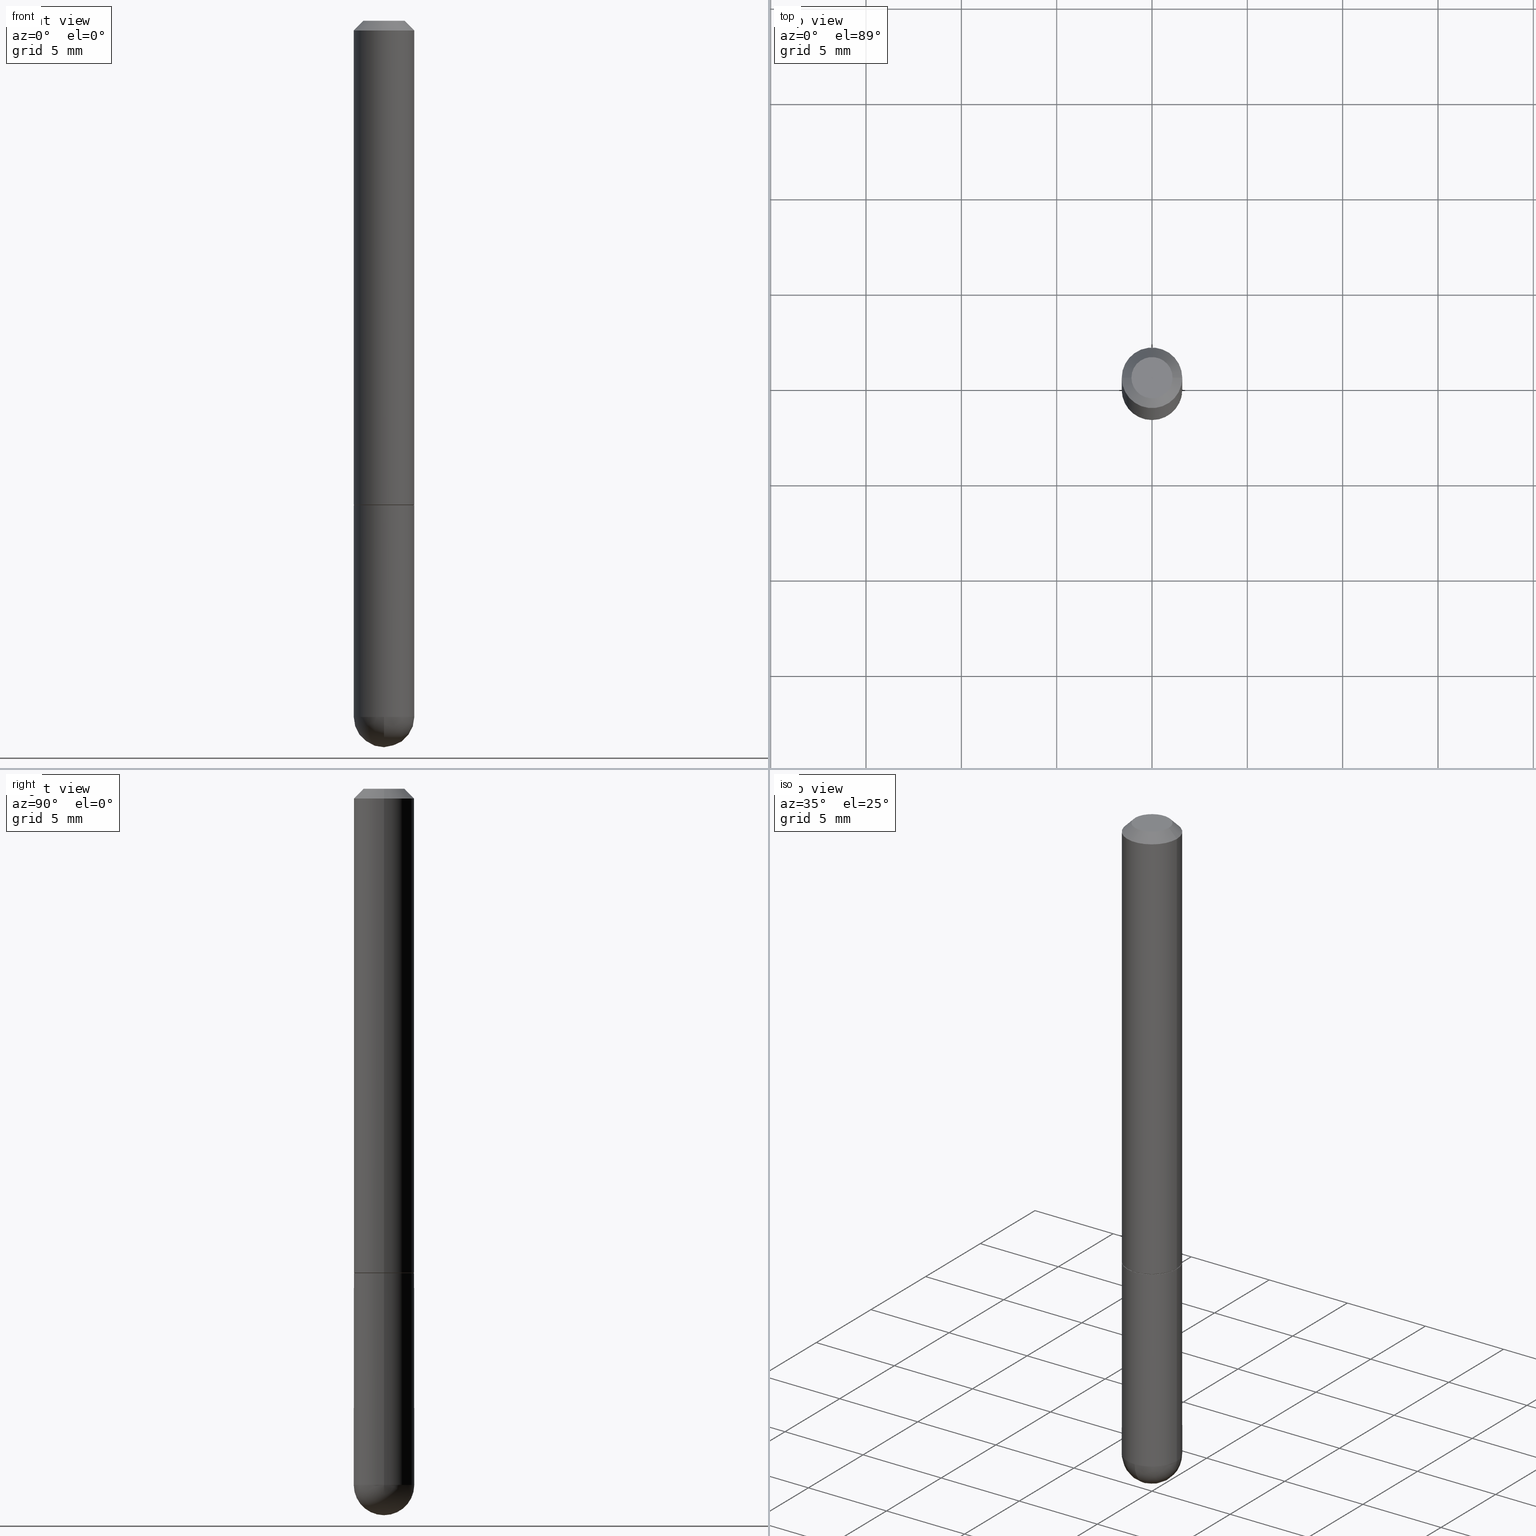
[diagram: canonical four-view strip — front | top / right | iso, engineering-drawing reading convention]
A machine part, canonical four-view strip (front | top / right | iso — engineering-drawing reading convention). The complete STEP part file that produces these views, byte-faithful:
ISO-10303-21;
HEADER;
FILE_DESCRIPTION (( 'STEP AP203' ),
    '1' );
FILE_NAME ('31137.STEP',
    '2024-02-21T16:47:25',
    ( '' ),
    ( '' ),
    'SwSTEP 2.0',
    'SolidWorks 2023',
    '' );
FILE_SCHEMA (( 'CONFIG_CONTROL_DESIGN' ));
ENDSEC;

DATA;
#1 = CALENDAR_DATE ( 2024, 21, 2 ) ;
#2 = CYLINDRICAL_SURFACE ( 'NONE', #74, 0.06250000000000004163 ) ;
#3 = ORIENTED_EDGE ( 'NONE', *, *, #314, .F. ) ;
#4 = CIRCLE ( 'NONE', #310, 0.06249999999999995143 ) ;
#5 = VERTEX_POINT ( 'NONE', #107 ) ;
#6 = CARTESIAN_POINT ( 'NONE',  ( -4.440892098500294840E-16, -0.06250000000000532907, -1.437500000000000000 ) ) ;
#7 = DIRECTION ( 'NONE',  ( -2.445468806185136597E-29, 3.491481338843145583E-15, 1.000000000000000000 ) ) ;
#8 = DIRECTION ( 'NONE',  ( 1.000000000000000000, -6.982962677686262766E-15, 0.000000000000000000 ) ) ;
#9 = DATE_TIME_ROLE ( 'classification_date' ) ;
#10 = AXIS2_PLACEMENT_3D ( 'NONE', #408, #223, #344 ) ;
#11 = DIRECTION ( 'NONE',  ( -2.445468806185136597E-29, 3.491481338843145583E-15, 1.000000000000000000 ) ) ;
#12 = CARTESIAN_POINT ( 'NONE',  ( 2.445468806185136877E-29, -3.491481338843145977E-15, -1.000000000000000222 ) ) ;
#13 = VERTEX_POINT ( 'NONE', #174 ) ;
#14 = AXIS2_PLACEMENT_3D ( 'NONE', #50, #28, #313 ) ;
#15 = ORIENTED_EDGE ( 'NONE', *, *, #376, .F. ) ;
#16 = EDGE_CURVE ( 'NONE', #64, #225, #77, .T. ) ;
#17 = PERSON_AND_ORGANIZATION_ROLE ( 'creator' ) ;
#18 = VERTEX_POINT ( 'NONE', #6 ) ;
#19 = ORIENTED_EDGE ( 'NONE', *, *, #46, .T. ) ;
#20 = CIRCLE ( 'NONE', #358, 0.04249999999999961448 ) ;
#21 = LOCAL_TIME ( 11, 47, 25.00000000000000000, #168 ) ;
#22 = EDGE_CURVE ( 'NONE', #13, #186, #20, .T. ) ;
#23 = DIRECTION ( 'NONE',  ( 2.445468806185136597E-29, -3.491481338843145583E-15, -1.000000000000000000 ) ) ;
#24 = CARTESIAN_POINT ( 'NONE',  ( 0.06149999999999999911, -3.920933543520851632E-15, -1.000000000000000222 ) ) ;
#25 = DIRECTION ( 'NONE',  ( 1.000000000000000000, -6.982962677686266711E-15, 4.852736867747410488E-29 ) ) ;
#26 = CIRCLE ( 'NONE', #300, 0.04249999999999961448 ) ;
#27 = APPROVAL ( #96, 'UNSPECIFIED' ) ;
#28 = DIRECTION ( 'NONE',  ( -2.445468806185136597E-29, 3.491481338843145583E-15, 1.000000000000000000 ) ) ;
#29 = CARTESIAN_POINT ( 'NONE',  ( 0.06249999999999997224, -4.364351673553914722E-16, 3.047610484872458469E-30 ) ) ;
#30 = CALENDAR_DATE ( 2024, 21, 2 ) ;
#31 = EDGE_LOOP ( 'NONE', ( #54, #71, #261, #327, #113 ) ) ;
#32 = CARTESIAN_POINT ( 'NONE',  ( -0.06149999999999999911, -3.054497556350684369E-15, -1.000000000000000222 ) ) ;
#33 = AXIS2_PLACEMENT_3D ( 'NONE', #12, #11, #8 ) ;
#34 = LINE ( 'NONE', #32, #233 ) ;
#35 = EDGE_CURVE ( 'NONE', #397, #18, #181, .T. ) ;
#36 = FACE_OUTER_BOUND ( 'NONE', #353, .T. ) ;
#37 = CARTESIAN_POINT ( 'NONE',  ( -0.06250000000000013878, -1.334820532290516771E-15, -0.9990000000000002212 ) ) ;
#38 = ORIENTED_EDGE ( 'NONE', *, *, #374, .F. ) ;
#39 = FACE_OUTER_BOUND ( 'NONE', #278, .T. ) ;
#40 = EDGE_CURVE ( 'NONE', #229, #385, #179, .T. ) ;
#41 = VECTOR ( 'NONE', #180, 39.37007874015748143 ) ;
#42 = CARTESIAN_POINT ( 'NONE',  ( 2.445468806185136877E-29, -3.491481338843145977E-15, -1.000000000000000222 ) ) ;
#43 = VERTEX_POINT ( 'NONE', #118 ) ;
#44 = LINE ( 'NONE', #79, #41 ) ;
#45 = APPROVAL_PERSON_ORGANIZATION ( #218, #309, #88 ) ;
#46 = EDGE_CURVE ( 'NONE', #397, #43, #256, .T. ) ;
#47 = CONICAL_SURFACE ( 'NONE', #116, 0.06249999999999995143, 0.7853981633974480570 ) ;
#48 = CC_DESIGN_PERSON_AND_ORGANIZATION_ASSIGNMENT ( #373, #145, ( #333 ) ) ;
#49 = APPLICATION_CONTEXT ( 'configuration controlled 3d designs of mechanical parts and assemblies' ) ;
#50 = CARTESIAN_POINT ( 'NONE',  ( 2.445468806185136877E-29, -3.491481338843145977E-15, -1.000000000000000222 ) ) ;
#51 = EDGE_CURVE ( 'NONE', #225, #229, #379, .T. ) ;
#52 = ORIENTED_EDGE ( 'NONE', *, *, #245, .T. ) ;
#53 = CARTESIAN_POINT ( 'NONE',  ( -0.06250000000000000000, -3.811153671865022332E-15, -1.000000000000000222 ) ) ;
#54 = ORIENTED_EDGE ( 'NONE', *, *, #372, .T. ) ;
#55 = AXIS2_PLACEMENT_3D ( 'NONE', #311, #211, #249 ) ;
#56 = LOCAL_TIME ( 11, 47, 25.00000000000000000, #288 ) ;
#57 = CARTESIAN_POINT ( 'NONE',  ( 3.515361408891134418E-29, -5.019004424587023131E-15, -1.437500000000000222 ) ) ;
#58 = MECHANICAL_CONTEXT ( 'NONE', #49, 'mechanical' ) ;
#59 = PERSON_AND_ORGANIZATION ( #401, #106 ) ;
#60 = CARTESIAN_POINT ( 'NONE',  ( 0.04249999999999961448, -3.950909582714350189E-16, 2.731847993664287377E-16 ) ) ;
#61 = CALENDAR_DATE ( 2024, 21, 2 ) ;
#62 = DATE_AND_TIME ( #30, #150 ) ;
#63 = DIRECTION ( 'NONE',  ( -2.445468806185136597E-29, 3.491481338843145583E-15, 1.000000000000000000 ) ) ;
#64 = VERTEX_POINT ( 'NONE', #112 ) ;
#65 = EDGE_CURVE ( 'NONE', #154, #5, #149, .T. ) ;
#66 = APPROVAL_ROLE ( '' ) ;
#67 = CARTESIAN_POINT ( 'NONE',  ( 0.06250000000000004163, -4.364351673553919652E-16, 3.047610484872461972E-30 ) ) ;
#68 = DIRECTION ( 'NONE',  ( -1.000000000000000000, 6.982962677686265922E-15, -4.883557194083112340E-29 ) ) ;
#69 = CIRCLE ( 'NONE', #324, 0.06149999999999999911 ) ;
#70 = DIRECTION ( 'NONE',  ( 1.000000000000000000, -6.982962677686262766E-15, 0.000000000000000000 ) ) ;
#71 = ORIENTED_EDGE ( 'NONE', *, *, #219, .T. ) ;
#72 = PLANE ( 'NONE',  #182 ) ;
#73 = CALENDAR_DATE ( 2024, 21, 2 ) ;
#74 = AXIS2_PLACEMENT_3D ( 'NONE', #292, #354, #89 ) ;
#75 = CONICAL_SURFACE ( 'NONE', #135, 0.06149999999999999911, 0.7853981633975507526 ) ;
#76 = ADVANCED_FACE ( 'NONE', ( #132 ), #2, .T. ) ;
#77 = CIRCLE ( 'NONE', #114, 0.06149999999999999911 ) ;
#78 = CIRCLE ( 'NONE', #281, 0.06249999999999995143 ) ;
#79 = CARTESIAN_POINT ( 'NONE',  ( -0.06249999999999997224, 4.440892098500624190E-16, -3.074334431409315063E-30 ) ) ;
#80 = VERTEX_POINT ( 'NONE', #251 ) ;
#81 = ADVANCED_FACE ( 'NONE', ( #129 ), #163, .F. ) ;
#82 = LENGTH_MEASURE_WITH_UNIT ( LENGTH_MEASURE( 0.02539999999999999897 ), #169 );
#83 = AXIS2_PLACEMENT_3D ( 'NONE', #204, #332, #274 ) ;
#84 = DIRECTION ( 'NONE',  ( 1.000000000000000000, -6.982962677686269866E-15, 0.000000000000000000 ) ) ;
#85 = DIRECTION ( 'NONE',  ( 0.7071067811866199593, -2.468850131083015945E-15, 0.7071067811864750752 ) ) ;
#86 = DIRECTION ( 'NONE',  ( -2.445468806185136877E-29, 3.491481338843145188E-15, 1.000000000000000000 ) ) ;
#87 = DIRECTION ( 'NONE',  ( 1.000000000000000000, -6.982962677686266711E-15, 4.876176775795935793E-29 ) ) ;
#88 = APPROVAL_ROLE ( '' ) ;
#89 = DIRECTION ( 'NONE',  ( 1.000000000000000000, -6.982962677686266711E-15, 4.876176775795935793E-29 ) ) ;
#90 = ORIENTED_EDGE ( 'NONE', *, *, #35, .F. ) ;
#91 = LOCAL_TIME ( 11, 47, 25.00000000000000000, #389 ) ;
#92 = PERSON_AND_ORGANIZATION ( #401, #106 ) ;
#93 = ORIENTED_EDGE ( 'NONE', *, *, #35, .T. ) ;
#94 = FACE_OUTER_BOUND ( 'NONE', #286, .T. ) ;
#95 = CARTESIAN_POINT ( 'NONE',  ( -0.06250000000000004163, 4.440892098500629120E-16, -3.074334431409318216E-30 ) ) ;
#96 = APPROVAL_STATUS ( 'not_yet_approved' ) ;
#97 = CARTESIAN_POINT ( 'NONE',  ( 4.364351673554160748E-16, 0.06249999999999650974, -1.000000000000000444 ) ) ;
#98 = CARTESIAN_POINT ( 'NONE',  ( 0.000000000000000000, 0.000000000000000000, 0.000000000000000000 ) ) ;
#99 = APPROVAL_ROLE ( '' ) ;
#100 = CARTESIAN_POINT ( 'NONE',  ( 2.967759138016636432E-16, 0.04249999999999961448, -1.179555721761916759E-17 ) ) ;
#101 = CONICAL_SURFACE ( 'NONE', #400, 0.06249999999999995143, 0.7853981633974480570 ) ;
#102 = VERTEX_POINT ( 'NONE', #122 ) ;
#103 = ORIENTED_EDGE ( 'NONE', *, *, #22, .F. ) ;
#104 = DIRECTION ( 'NONE',  ( -1.000000000000000000, 7.105427357601001070E-15, -4.926315508542082329E-29 ) ) ;
#105 = PERSON_AND_ORGANIZATION ( #401, #106 ) ;
#106 = ORGANIZATION ( 'UNSPECIFIED', 'UNSPECIFIED', '' ) ;
#107 = CARTESIAN_POINT ( 'NONE',  ( 0.06250000000000000000, -3.927916506198537646E-15, -1.000000000000000222 ) ) ;
#108 = EDGE_CURVE ( 'NONE', #13, #325, #227, .T. ) ;
#109 = DIRECTION ( 'NONE',  ( -1.000000000000000000, 6.982962677686266711E-15, 0.000000000000000000 ) ) ;
#110 = EDGE_CURVE ( 'NONE', #186, #13, #26, .T. ) ;
#111 = APPROVAL_PERSON_ORGANIZATION ( #366, #27, #66 ) ;
#112 = CARTESIAN_POINT ( 'NONE',  ( -0.06149999999999999911, -3.049199102002462361E-15, -1.000000000000000222 ) ) ;
#113 = ORIENTED_EDGE ( 'NONE', *, *, #124, .T. ) ;
#114 = AXIS2_PLACEMENT_3D ( 'NONE', #298, #239, #170 ) ;
#115 = ORIENTED_EDGE ( 'NONE', *, *, #108, .T. ) ;
#116 = AXIS2_PLACEMENT_3D ( 'NONE', #146, #23, #405 ) ;
#117 = DIRECTION ( 'NONE',  ( -2.445468806185136597E-29, 3.491481338843145583E-15, 1.000000000000000000 ) ) ;
#118 = CARTESIAN_POINT ( 'NONE',  ( 4.364351673554256397E-16, 0.06249999999999480971, -1.437500000000000444 ) ) ;
#119 = EDGE_CURVE ( 'NONE', #385, #229, #175, .T. ) ;
#120 = DIRECTION ( 'NONE',  ( 1.000000000000000000, -6.982962677686270655E-15, 0.000000000000000000 ) ) ;
#121 = CARTESIAN_POINT ( 'NONE',  ( 4.890937612370289799E-31, -6.982962677686315028E-17, -0.02000000000000006981 ) ) ;
#122 = CARTESIAN_POINT ( 'NONE',  ( -0.06249999999999995143, -3.811153671865022332E-15, -1.437500000000000222 ) ) ;
#123 = ORIENTED_EDGE ( 'NONE', *, *, #110, .T. ) ;
#124 = EDGE_CURVE ( 'NONE', #80, #43, #4, .T. ) ;
#125 = DIRECTION ( 'NONE',  ( -1.000000000000000000, 6.982962677686265922E-15, -4.876176775795935793E-29 ) ) ;
#126 = VECTOR ( 'NONE', #86, 39.37007874015748143 ) ;
#127 = AXIS2_PLACEMENT_3D ( 'NONE', #137, #7, #200 ) ;
#128 = FACE_OUTER_BOUND ( 'NONE', #336, .T. ) ;
#129 = FACE_OUTER_BOUND ( 'NONE', #212, .T. ) ;
#130 = DIRECTION ( 'NONE',  ( -2.445468806185136597E-29, 3.491481338843145583E-15, 1.000000000000000000 ) ) ;
#131 = SPHERICAL_SURFACE ( 'NONE', #270, 0.06250000000000018041 ) ;
#132 = FACE_OUTER_BOUND ( 'NONE', #140, .T. ) ;
#133 = PRODUCT_DEFINITION ( 'UNKNOWN', '', #302, #246 ) ;
#134 = CARTESIAN_POINT ( 'NONE',  ( -0.06249999999999995143, 3.666055405785281740E-16, -0.02000000000000006981 ) ) ;
#135 = AXIS2_PLACEMENT_3D ( 'NONE', #319, #117, #339 ) ;
#136 = ORIENTED_EDGE ( 'NONE', *, *, #110, .F. ) ;
#137 = CARTESIAN_POINT ( 'NONE',  ( 4.890937612370289799E-31, -6.982962677686315028E-17, -0.02000000000000006981 ) ) ;
#138 = DATE_AND_TIME ( #73, #21 ) ;
#139 = ORIENTED_EDGE ( 'NONE', *, *, #16, .F. ) ;
#140 = EDGE_LOOP ( 'NONE', ( #15, #412, #244, #178 ) ) ;
#141 = CC_DESIGN_PERSON_AND_ORGANIZATION_ASSIGNMENT ( #92, #351, ( #177 ) ) ;
#142 = CIRCLE ( 'NONE', #33, 0.06250000000000000000 ) ;
#143 = ORIENTED_EDGE ( 'NONE', *, *, #357, .T. ) ;
#144 = EDGE_CURVE ( 'NONE', #229, #216, #254, .T. ) ;
#145 = PERSON_AND_ORGANIZATION_ROLE ( 'classification_officer' ) ;
#146 = CARTESIAN_POINT ( 'NONE',  ( 4.890937612370289799E-31, -6.982962677686315028E-17, -0.02000000000000006981 ) ) ;
#147 = AXIS2_PLACEMENT_3D ( 'NONE', #275, #167, #297 ) ;
#148 = ADVANCED_FACE ( 'NONE', ( #391 ), #195, .F. ) ;
#149 = CIRCLE ( 'NONE', #395, 0.06250000000000000000 ) ;
#150 = LOCAL_TIME ( 11, 47, 25.00000000000000000, #224 ) ;
#151 = DIRECTION ( 'NONE',  ( -2.445468806185136597E-29, 3.491481338843145583E-15, 1.000000000000000000 ) ) ;
#152 = EDGE_LOOP ( 'NONE', ( #375, #103, #115, #349 ) ) ;
#153 = DIRECTION ( 'NONE',  ( -2.445468806185136597E-29, 3.491481338843145583E-15, 1.000000000000000000 ) ) ;
#154 = VERTEX_POINT ( 'NONE', #53 ) ;
#155 = DIRECTION ( 'NONE',  ( -2.445468806185136877E-29, 3.491481338843145188E-15, 1.000000000000000000 ) ) ;
#156 = EDGE_CURVE ( 'NONE', #18, #80, #184, .T. ) ;
#157 = DIRECTION ( 'NONE',  ( -2.445468806185136597E-29, 3.491481338843145583E-15, 1.000000000000000000 ) ) ;
#158 = ORIENTED_EDGE ( 'NONE', *, *, #357, .F. ) ;
#159 = DIRECTION ( 'NONE',  ( 1.000000000000000000, -6.982962677686266711E-15, 0.000000000000000000 ) ) ;
#160 = CARTESIAN_POINT ( 'NONE',  ( 0.000000000000000000, 0.000000000000000000, 0.000000000000000000 ) ) ;
#161 = DIRECTION ( 'NONE',  ( -0.7071067811866199593, 7.493145998870616062E-15, 0.7071067811864750752 ) ) ;
#162 = ORIENTED_EDGE ( 'NONE', *, *, #40, .T. ) ;
#163 = PLANE ( 'NONE',  #323 ) ;
#164 = ORIENTED_EDGE ( 'NONE', *, *, #124, .F. ) ;
#165 = CONICAL_SURFACE ( 'NONE', #14, 0.06149999999999999911, 0.7853981633975507526 ) ;
#166 = EDGE_LOOP ( 'NONE', ( #293, #368, #188, #252 ) ) ;
#167 = DIRECTION ( 'NONE',  ( -2.445468806185136597E-29, 3.491481338843145583E-15, 1.000000000000000000 ) ) ;
#168 = COORDINATED_UNIVERSAL_TIME_OFFSET ( 5, 0, .BEHIND. ) ;
#169 =( LENGTH_UNIT ( ) NAMED_UNIT ( * ) SI_UNIT ( $, .METRE. ) );
#170 = DIRECTION ( 'NONE',  ( 1.000000000000000000, -6.982962677686269866E-15, 0.000000000000000000 ) ) ;
#171 = CARTESIAN_POINT ( 'NONE',  ( 3.184241630977247611E-29, -5.493186792727071849E-15, -1.437500000000000000 ) ) ;
#172 = DATE_AND_TIME ( #61, #91 ) ;
#173 = DIRECTION ( 'NONE',  ( -2.445468806185136877E-29, 3.491481338843145188E-15, 1.000000000000000000 ) ) ;
#174 = CARTESIAN_POINT ( 'NONE',  ( -0.04249999999999961448, 3.316907271900963770E-16, 2.731847993664241525E-16 ) ) ;
#175 = CIRCLE ( 'NONE', #402, 0.06250000000000013878 ) ;
#176 = PRODUCT_RELATED_PRODUCT_CATEGORY ( 'detail', '', ( #177 ) ) ;
#177 = PRODUCT ( '31137', '31137', '', ( #58 ) ) ;
#178 = ORIENTED_EDGE ( 'NONE', *, *, #340, .F. ) ;
#179 = CIRCLE ( 'NONE', #83, 0.06250000000000013878 ) ;
#180 = DIRECTION ( 'NONE',  ( -2.445468806185136877E-29, 3.491481338843145188E-15, 1.000000000000000000 ) ) ;
#181 = CIRCLE ( 'NONE', #214, 0.06250000000000018041 ) ;
#182 = AXIS2_PLACEMENT_3D ( 'NONE', #42, #198, #326 ) ;
#183 = CC_DESIGN_PERSON_AND_ORGANIZATION_ASSIGNMENT ( #280, #236, ( #302 ) ) ;
#184 = CIRCLE ( 'NONE', #307, 0.06249999999999995143 ) ;
#185 = CC_DESIGN_SECURITY_CLASSIFICATION ( #333, ( #302 ) ) ;
#186 = VERTEX_POINT ( 'NONE', #60 ) ;
#187 = CARTESIAN_POINT ( 'NONE',  ( 3.515361408891134418E-29, -5.019004424587023131E-15, -1.437500000000000222 ) ) ;
#188 = ORIENTED_EDGE ( 'NONE', *, *, #40, .F. ) ;
#189 = EDGE_CURVE ( 'NONE', #186, #216, #192, .T. ) ;
#190 =( NAMED_UNIT ( * ) PLANE_ANGLE_UNIT ( ) SI_UNIT ( $, .RADIAN. ) );
#191 = PERSON_AND_ORGANIZATION_ROLE ( 'creator' ) ;
#192 = LINE ( 'NONE', #320, #277 ) ;
#193 = EDGE_LOOP ( 'NONE', ( #335, #93, #158, #196 ) ) ;
#194 = DATE_AND_TIME ( #1, #56 ) ;
#195 = PLANE ( 'NONE',  #367 ) ;
#196 = ORIENTED_EDGE ( 'NONE', *, *, #372, .F. ) ;
#197 = CARTESIAN_POINT ( 'NONE',  ( 4.890937612370289799E-31, -6.982962677686315028E-17, -0.02000000000000006981 ) ) ;
#198 = DIRECTION ( 'NONE',  ( -2.438088387897960049E-29, 3.491481338843145188E-15, 1.000000000000000000 ) ) ;
#199 = ADVANCED_FACE ( 'NONE', ( #294 ), #390, .T. ) ;
#200 = DIRECTION ( 'NONE',  ( 1.000000000000000000, -6.982962677686266711E-15, 0.000000000000000000 ) ) ;
#201 = LINE ( 'NONE', #95, #337 ) ;
#202 =( NAMED_UNIT ( * ) SI_UNIT ( $, .STERADIAN. ) SOLID_ANGLE_UNIT ( ) );
#203 = CARTESIAN_POINT ( 'NONE',  ( -6.680649051745406845E-45, 9.538196290434862081E-31, 2.731847993664263218E-16 ) ) ;
#204 = CARTESIAN_POINT ( 'NONE',  ( 2.443023337378951835E-29, -3.487989857504302970E-15, -0.9990000000000002212 ) ) ;
#205 = CC_DESIGN_DATE_AND_TIME_ASSIGNMENT ( #194, #322, ( #133 ) ) ;
#206 = SECURITY_CLASSIFICATION_LEVEL ( 'unclassified' ) ;
#207 = CARTESIAN_POINT ( 'NONE',  ( 0.06249999999999995143, -4.986107516375835278E-16, -0.02000000000000006981 ) ) ;
#208 = ADVANCED_FACE ( 'NONE', ( #94 ), #165, .T. ) ;
#209 = VECTOR ( 'NONE', #228, 39.37007874015748143 ) ;
#210 = CALENDAR_DATE ( 2024, 21, 2 ) ;
#211 = DIRECTION ( 'NONE',  ( 1.000000000000000000, -6.982962677686265922E-15, 4.883557194083112340E-29 ) ) ;
#212 = EDGE_LOOP ( 'NONE', ( #383, #123 ) ) ;
#213 = ADVANCED_FACE ( 'NONE', ( #411 ), #101, .T. ) ;
#214 = AXIS2_PLACEMENT_3D ( 'NONE', #398, #104, #365 ) ;
#215 = FACE_OUTER_BOUND ( 'NONE', #166, .T. ) ;
#216 = VERTEX_POINT ( 'NONE', #207 ) ;
#217 = CARTESIAN_POINT ( 'NONE',  ( 0.06149999999999999911, -3.920933543520851632E-15, -1.000000000000000222 ) ) ;
#218 = PERSON_AND_ORGANIZATION ( #401, #106 ) ;
#219 = EDGE_CURVE ( 'NONE', #102, #154, #44, .T. ) ;
#220 = DIRECTION ( 'NONE',  ( 2.438088387897960049E-29, -3.491481338843145188E-15, -1.000000000000000000 ) ) ;
#221 =( CONVERSION_BASED_UNIT ( 'INCH', #82 ) LENGTH_UNIT ( ) NAMED_UNIT ( #362 ) );
#222 = DIRECTION ( 'NONE',  ( 2.445468806185136597E-29, -3.491481338843145583E-15, -1.000000000000000000 ) ) ;
#223 = DIRECTION ( 'NONE',  ( 0.000000000000000000, 0.000000000000000000, 1.000000000000000000 ) ) ;
#224 = COORDINATED_UNIVERSAL_TIME_OFFSET ( 5, 0, .BEHIND. ) ;
#225 = VERTEX_POINT ( 'NONE', #24 ) ;
#226 = CC_DESIGN_APPROVAL ( #27, ( #302 ) ) ;
#227 = LINE ( 'NONE', #289, #209 ) ;
#228 = DIRECTION ( 'NONE',  ( -0.7071067811865473507, 2.468850131082255088E-15, -0.7071067811865476838 ) ) ;
#229 = VERTEX_POINT ( 'NONE', #259 ) ;
#230 = DIRECTION ( 'NONE',  ( 0.7071067811865473507, -7.319954787623256045E-15, -0.7071067811865476838 ) ) ;
#231 = DIRECTION ( 'NONE',  ( -2.445468806185136597E-29, 3.491481338843145583E-15, 1.000000000000000000 ) ) ;
#232 = ADVANCED_FACE ( 'NONE', ( #215 ), #75, .T. ) ;
#233 = VECTOR ( 'NONE', #161, 39.37007874015748143 ) ;
#234 = ORIENTED_EDGE ( 'NONE', *, *, #156, .T. ) ;
#235 = APPROVAL ( #392, 'UNSPECIFIED' ) ;
#236 = PERSON_AND_ORGANIZATION_ROLE ( 'design_supplier' ) ;
#237 = DIRECTION ( 'NONE',  ( -1.000000000000000000, 6.982962677686265922E-15, -4.883557194083112340E-29 ) ) ;
#238 = LOCAL_TIME ( 11, 47, 25.00000000000000000, #399 ) ;
#239 = DIRECTION ( 'NONE',  ( -2.445468806185136597E-29, 3.491481338843145583E-15, 1.000000000000000000 ) ) ;
#240 = MANIFOLD_SOLID_BREP ( 'Body-Move/Copy2[2]', #241 ) ;
#241 = CLOSED_SHELL ( 'NONE', ( #232, #299, #262, #213, #76, #208, #279, #81 ) ) ;
#242 = CC_DESIGN_APPROVAL ( #309, ( #133 ) ) ;
#243 = MANIFOLD_SOLID_BREP ( 'Body-Move/Copy2[1]', #269 ) ;
#244 = ORIENTED_EDGE ( 'NONE', *, *, #144, .T. ) ;
#245 = EDGE_CURVE ( 'NONE', #80, #5, #407, .T. ) ;
#246 = DESIGN_CONTEXT ( 'detailed design', #330, 'design' ) ;
#247 = CIRCLE ( 'NONE', #312, 0.06249999999999995143 ) ;
#248 = ORIENTED_EDGE ( 'NONE', *, *, #65, .F. ) ;
#249 = DIRECTION ( 'NONE',  ( 6.982962677686266711E-15, 1.000000000000000000, 0.000000000000000000 ) ) ;
#250 = CC_DESIGN_PERSON_AND_ORGANIZATION_ASSIGNMENT ( #105, #17, ( #302 ) ) ;
#251 = CARTESIAN_POINT ( 'NONE',  ( 0.06249999999999995143, -4.691678049070475040E-15, -1.437500000000000222 ) ) ;
#252 = ORIENTED_EDGE ( 'NONE', *, *, #51, .F. ) ;
#253 = UNCERTAINTY_MEASURE_WITH_UNIT (LENGTH_MEASURE( 1.000000000000000082E-05 ), #221, 'distance_accuracy_value', 'NONE');
#254 = LINE ( 'NONE', #67, #126 ) ;
#255 = ORIENTED_EDGE ( 'NONE', *, *, #290, .T. ) ;
#256 = CIRCLE ( 'NONE', #55, 0.06250000000000018041 ) ;
#257 = AXIS2_PLACEMENT_3D ( 'NONE', #160, #285, #378 ) ;
#258 = SHAPE_DEFINITION_REPRESENTATION ( #305, #386 ) ;
#259 = CARTESIAN_POINT ( 'NONE',  ( 0.06250000000000013878, -3.924425024859695428E-15, -0.9990000000000002212 ) ) ;
#260 = CARTESIAN_POINT ( 'NONE',  ( 3.515361408891134418E-29, -5.019004424587023131E-15, -1.437500000000000222 ) ) ;
#261 = ORIENTED_EDGE ( 'NONE', *, *, #290, .F. ) ;
#262 = ADVANCED_FACE ( 'NONE', ( #287 ), #47, .T. ) ;
#263 = CYLINDRICAL_SURFACE ( 'NONE', #345, 0.06249999999999997224 ) ;
#264 = DIRECTION ( 'NONE',  ( 6.982962677686265922E-15, 1.000000000000000000, -4.370956789862807739E-15 ) ) ;
#265 = PERSON_AND_ORGANIZATION ( #401, #106 ) ;
#266 = DATE_AND_TIME ( #210, #238 ) ;
#267 = DIRECTION ( 'NONE',  ( 1.000000000000000000, -6.982962677686268288E-15, 0.000000000000000000 ) ) ;
#268 = FACE_OUTER_BOUND ( 'NONE', #306, .T. ) ;
#269 = CLOSED_SHELL ( 'NONE', ( #199, #271, #283, #148, #350 ) ) ;
#270 = AXIS2_PLACEMENT_3D ( 'NONE', #171, #237, #264 ) ;
#271 = ADVANCED_FACE ( 'NONE', ( #282 ), #363, .T. ) ;
#272 = ORIENTED_EDGE ( 'NONE', *, *, #65, .T. ) ;
#273 = APPROVAL_DATE_TIME ( #138, #235 ) ;
#274 = DIRECTION ( 'NONE',  ( 1.000000000000000000, -6.982962677686270655E-15, 0.000000000000000000 ) ) ;
#275 = CARTESIAN_POINT ( 'NONE',  ( 0.000000000000000000, 0.000000000000000000, 0.000000000000000000 ) ) ;
#276 = DIRECTION ( 'NONE',  ( -2.445468806185136597E-29, 3.491481338843145583E-15, 1.000000000000000000 ) ) ;
#277 = VECTOR ( 'NONE', #230, 39.37007874015748143 ) ;
#278 = EDGE_LOOP ( 'NONE', ( #318, #139 ) ) ;
#279 = ADVANCED_FACE ( 'NONE', ( #39 ), #72, .F. ) ;
#280 = PERSON_AND_ORGANIZATION ( #401, #106 ) ;
#281 = AXIS2_PLACEMENT_3D ( 'NONE', #355, #153, #364 ) ;
#282 = FACE_OUTER_BOUND ( 'NONE', #193, .T. ) ;
#283 = ADVANCED_FACE ( 'NONE', ( #268 ), #131, .T. ) ;
#284 = VECTOR ( 'NONE', #85, 39.37007874015748143 ) ;
#285 = DIRECTION ( 'NONE',  ( -2.445468806185136597E-29, 3.491481338843145583E-15, 1.000000000000000000 ) ) ;
#286 = EDGE_LOOP ( 'NONE', ( #38, #321, #370, #388 ) ) ;
#287 = FACE_OUTER_BOUND ( 'NONE', #308, .T. ) ;
#288 = COORDINATED_UNIVERSAL_TIME_OFFSET ( 5, 0, .BEHIND. ) ;
#289 = CARTESIAN_POINT ( 'NONE',  ( -0.06249999999999995143, 3.666055405785281740E-16, -0.02000000000000006981 ) ) ;
#290 = EDGE_CURVE ( 'NONE', #5, #154, #142, .T. ) ;
#291 = AXIS2_PLACEMENT_3D ( 'NONE', #57, #231, #267 ) ;
#292 = CARTESIAN_POINT ( 'NONE',  ( 0.000000000000000000, 0.000000000000000000, 0.000000000000000000 ) ) ;
#293 = ORIENTED_EDGE ( 'NONE', *, *, #338, .T. ) ;
#294 = FACE_OUTER_BOUND ( 'NONE', #31, .T. ) ;
#295 = CARTESIAN_POINT ( 'NONE',  ( 3.339755826017505008E-29, -5.707577355157432999E-15, -1.500000000000000222 ) ) ;
#296 = ORIENTED_EDGE ( 'NONE', *, *, #219, .F. ) ;
#297 = DIRECTION ( 'NONE',  ( 1.000000000000000000, -6.982962677686266711E-15, 4.876176775795935793E-29 ) ) ;
#298 = CARTESIAN_POINT ( 'NONE',  ( 2.445468806185136877E-29, -3.491481338843145977E-15, -1.000000000000000222 ) ) ;
#299 = ADVANCED_FACE ( 'NONE', ( #36 ), #394, .T. ) ;
#300 = AXIS2_PLACEMENT_3D ( 'NONE', #315, #157, #25 ) ;
#301 = DIRECTION ( 'NONE',  ( 1.000000000000000000, -6.982962677686266711E-15, 4.852736867747410488E-29 ) ) ;
#302 = PRODUCT_DEFINITION_FORMATION_WITH_SPECIFIED_SOURCE ( 'ANY', '', #177, .NOT_KNOWN. ) ;
#303 = ORIENTED_EDGE ( 'NONE', *, *, #156, .F. ) ;
#304 = EDGE_LOOP ( 'NONE', ( #255, #272 ) ) ;
#305 = PRODUCT_DEFINITION_SHAPE ( 'NONE', 'NONE',  #133 ) ;
#306 = EDGE_LOOP ( 'NONE', ( #90, #19, #164, #303 ) ) ;
#307 = AXIS2_PLACEMENT_3D ( 'NONE', #187, #384, #348 ) ;
#308 = EDGE_LOOP ( 'NONE', ( #136, #342, #406, #316 ) ) ;
#309 = APPROVAL ( #381, 'UNSPECIFIED' ) ;
#310 = AXIS2_PLACEMENT_3D ( 'NONE', #260, #63, #380 ) ;
#311 = CARTESIAN_POINT ( 'NONE',  ( 3.184241630977247611E-29, -5.493186792727071849E-15, -1.437500000000000000 ) ) ;
#312 = AXIS2_PLACEMENT_3D ( 'NONE', #197, #130, #159 ) ;
#313 = DIRECTION ( 'NONE',  ( 1.000000000000000000, -6.982962677686269866E-15, 0.000000000000000000 ) ) ;
#314 = EDGE_CURVE ( 'NONE', #216, #325, #317, .T. ) ;
#315 = CARTESIAN_POINT ( 'NONE',  ( -6.680649051745406845E-45, 9.538196290434862081E-31, 2.731847993664263218E-16 ) ) ;
#316 = ORIENTED_EDGE ( 'NONE', *, *, #108, .F. ) ;
#317 = CIRCLE ( 'NONE', #127, 0.06249999999999995143 ) ;
#318 = ORIENTED_EDGE ( 'NONE', *, *, #338, .F. ) ;
#319 = CARTESIAN_POINT ( 'NONE',  ( 2.445468806185136877E-29, -3.491481338843145977E-15, -1.000000000000000222 ) ) ;
#320 = CARTESIAN_POINT ( 'NONE',  ( 0.06249999999999995143, -4.986107516375835278E-16, -0.02000000000000006981 ) ) ;
#321 = ORIENTED_EDGE ( 'NONE', *, *, #16, .T. ) ;
#322 = DATE_TIME_ROLE ( 'creation_date' ) ;
#323 = AXIS2_PLACEMENT_3D ( 'NONE', #100, #410, #125 ) ;
#324 = AXIS2_PLACEMENT_3D ( 'NONE', #371, #276, #84 ) ;
#325 = VERTEX_POINT ( 'NONE', #134 ) ;
#326 = DIRECTION ( 'NONE',  ( 1.000000000000000000, -6.982962677686265922E-15, 4.876176775795935793E-29 ) ) ;
#327 = ORIENTED_EDGE ( 'NONE', *, *, #245, .F. ) ;
#328 = CC_DESIGN_PERSON_AND_ORGANIZATION_ASSIGNMENT ( #59, #191, ( #133 ) ) ;
#329 = DIRECTION ( 'NONE',  ( -2.445468806185136597E-29, 3.491481338843145583E-15, 1.000000000000000000 ) ) ;
#330 = APPLICATION_CONTEXT ( 'configuration controlled 3d designs of mechanical parts and assemblies' ) ;
#331 = APPLICATION_PROTOCOL_DEFINITION ( 'international standard', 'config_control_design', 1994, #49 ) ;
#332 = DIRECTION ( 'NONE',  ( -2.445468806185136597E-29, 3.491481338843145583E-15, 1.000000000000000000 ) ) ;
#333 = SECURITY_CLASSIFICATION ( '', '', #206 ) ;
#334 = CARTESIAN_POINT ( 'NONE',  ( 3.184241630977247611E-29, -5.493186792727071849E-15, -1.437500000000000000 ) ) ;
#335 = ORIENTED_EDGE ( 'NONE', *, *, #46, .F. ) ;
#336 = EDGE_LOOP ( 'NONE', ( #296, #143, #234, #52, #248 ) ) ;
#337 = VECTOR ( 'NONE', #173, 39.37007874015748143 ) ;
#338 = EDGE_CURVE ( 'NONE', #225, #64, #69, .T. ) ;
#339 = DIRECTION ( 'NONE',  ( 1.000000000000000000, -6.982962677686269866E-15, 0.000000000000000000 ) ) ;
#340 = EDGE_CURVE ( 'NONE', #325, #216, #247, .T. ) ;
#341 = DIRECTION ( 'NONE',  ( -1.000000000000000000, 6.982962677686265922E-15, -4.876176775795935793E-29 ) ) ;
#342 = ORIENTED_EDGE ( 'NONE', *, *, #189, .T. ) ;
#343 = DIRECTION ( 'NONE',  ( -2.445468806185136597E-29, 3.491481338843145583E-15, 1.000000000000000000 ) ) ;
#344 = DIRECTION ( 'NONE',  ( 1.000000000000000000, 0.000000000000000000, 0.000000000000000000 ) ) ;
#345 = AXIS2_PLACEMENT_3D ( 'NONE', #98, #343, #87 ) ;
#346 = APPROVAL_DATE_TIME ( #62, #309 ) ;
#347 = ORIENTED_EDGE ( 'NONE', *, *, #376, .T. ) ;
#348 = DIRECTION ( 'NONE',  ( 1.000000000000000000, -6.982962677686268288E-15, 0.000000000000000000 ) ) ;
#349 = ORIENTED_EDGE ( 'NONE', *, *, #340, .T. ) ;
#350 = ADVANCED_FACE ( 'NONE', ( #128 ), #263, .T. ) ;
#351 = PERSON_AND_ORGANIZATION_ROLE ( 'design_owner' ) ;
#352 = CARTESIAN_POINT ( 'NONE',  ( 2.443023337378951835E-29, -3.487989857504302970E-15, -0.9990000000000002212 ) ) ;
#353 = EDGE_LOOP ( 'NONE', ( #162, #347, #3, #361 ) ) ;
#354 = DIRECTION ( 'NONE',  ( -2.445468806185136597E-29, 3.491481338843145583E-15, 1.000000000000000000 ) ) ;
#355 = CARTESIAN_POINT ( 'NONE',  ( 3.515361408891134418E-29, -5.019004424587023131E-15, -1.437500000000000222 ) ) ;
#356 = DIRECTION ( 'NONE',  ( 6.982962677686265922E-15, 1.000000000000000000, -4.370956789862807739E-15 ) ) ;
#357 = EDGE_CURVE ( 'NONE', #102, #18, #377, .T. ) ;
#358 = AXIS2_PLACEMENT_3D ( 'NONE', #203, #329, #301 ) ;
#359 = AXIS2_PLACEMENT_3D ( 'NONE', #334, #68, #356 ) ;
#360 = APPROVAL_DATE_TIME ( #266, #27 ) ;
#361 = ORIENTED_EDGE ( 'NONE', *, *, #144, .F. ) ;
#362 = DIMENSIONAL_EXPONENTS ( 1.000000000000000000, 0.000000000000000000, 0.000000000000000000, 0.000000000000000000, 0.000000000000000000, 0.000000000000000000, 0.000000000000000000 ) ;
#363 = SPHERICAL_SURFACE ( 'NONE', #359, 0.06250000000000018041 ) ;
#364 = DIRECTION ( 'NONE',  ( 1.000000000000000000, -6.982962677686268288E-15, 0.000000000000000000 ) ) ;
#365 = DIRECTION ( 'NONE',  ( -7.105427357601001859E-15, -1.000000000000000000, 0.000000000000000000 ) ) ;
#366 = PERSON_AND_ORGANIZATION ( #401, #106 ) ;
#367 = AXIS2_PLACEMENT_3D ( 'NONE', #97, #220, #341 ) ;
#368 = ORIENTED_EDGE ( 'NONE', *, *, #374, .T. ) ;
#369 = CC_DESIGN_APPROVAL ( #235, ( #333 ) ) ;
#370 = ORIENTED_EDGE ( 'NONE', *, *, #51, .T. ) ;
#371 = CARTESIAN_POINT ( 'NONE',  ( 2.445468806185136877E-29, -3.491481338843145977E-15, -1.000000000000000222 ) ) ;
#372 = EDGE_CURVE ( 'NONE', #43, #102, #78, .T. ) ;
#373 = PERSON_AND_ORGANIZATION ( #401, #106 ) ;
#374 = EDGE_CURVE ( 'NONE', #64, #385, #34, .T. ) ;
#375 = ORIENTED_EDGE ( 'NONE', *, *, #189, .F. ) ;
#376 = EDGE_CURVE ( 'NONE', #385, #325, #201, .T. ) ;
#377 = CIRCLE ( 'NONE', #291, 0.06249999999999995143 ) ;
#378 = DIRECTION ( 'NONE',  ( 1.000000000000000000, -6.982962677686266711E-15, 4.876176775795935793E-29 ) ) ;
#379 = LINE ( 'NONE', #217, #284 ) ;
#380 = DIRECTION ( 'NONE',  ( 1.000000000000000000, -6.982962677686268288E-15, 0.000000000000000000 ) ) ;
#381 = APPROVAL_STATUS ( 'not_yet_approved' ) ;
#382 = CC_DESIGN_DATE_AND_TIME_ASSIGNMENT ( #172, #9, ( #333 ) ) ;
#383 = ORIENTED_EDGE ( 'NONE', *, *, #22, .T. ) ;
#384 = DIRECTION ( 'NONE',  ( -2.445468806185136597E-29, 3.491481338843145583E-15, 1.000000000000000000 ) ) ;
#385 = VERTEX_POINT ( 'NONE', #37 ) ;
#386 = ADVANCED_BREP_SHAPE_REPRESENTATION ( '31137', ( #243, #240, #10 ), #396 ) ;
#387 = APPROVAL_PERSON_ORGANIZATION ( #265, #235, #99 ) ;
#388 = ORIENTED_EDGE ( 'NONE', *, *, #119, .F. ) ;
#389 = COORDINATED_UNIVERSAL_TIME_OFFSET ( 5, 0, .BEHIND. ) ;
#390 = CYLINDRICAL_SURFACE ( 'NONE', #257, 0.06249999999999997224 ) ;
#391 = FACE_OUTER_BOUND ( 'NONE', #304, .T. ) ;
#392 = APPROVAL_STATUS ( 'not_yet_approved' ) ;
#393 = DIRECTION ( 'NONE',  ( -2.445468806185136597E-29, 3.491481338843145583E-15, 1.000000000000000000 ) ) ;
#394 = CYLINDRICAL_SURFACE ( 'NONE', #147, 0.06250000000000004163 ) ;
#395 = AXIS2_PLACEMENT_3D ( 'NONE', #404, #393, #70 ) ;
#396 =( GEOMETRIC_REPRESENTATION_CONTEXT ( 3 ) GLOBAL_UNCERTAINTY_ASSIGNED_CONTEXT ( ( #253 ) ) GLOBAL_UNIT_ASSIGNED_CONTEXT ( ( #221, #190, #202 ) ) REPRESENTATION_CONTEXT ( 'NONE', 'WORKASPACE' ) );
#397 = VERTEX_POINT ( 'NONE', #295 ) ;
#398 = CARTESIAN_POINT ( 'NONE',  ( 3.184241630977247611E-29, -5.493186792727071849E-15, -1.437500000000000000 ) ) ;
#399 = COORDINATED_UNIVERSAL_TIME_OFFSET ( 5, 0, .BEHIND. ) ;
#400 = AXIS2_PLACEMENT_3D ( 'NONE', #121, #222, #109 ) ;
#401 = PERSON ( 'UNSPECIFIED', 'UNSPECIFIED', 'UNSPECIFIED', ('UNSPECIFIED'), ('UNSPECIFIED'), ('UNSPECIFIED') ) ;
#402 = AXIS2_PLACEMENT_3D ( 'NONE', #352, #151, #120 ) ;
#403 = VECTOR ( 'NONE', #155, 39.37007874015748143 ) ;
#404 = CARTESIAN_POINT ( 'NONE',  ( 2.445468806185136877E-29, -3.491481338843145977E-15, -1.000000000000000222 ) ) ;
#405 = DIRECTION ( 'NONE',  ( -1.000000000000000000, 6.982962677686266711E-15, 0.000000000000000000 ) ) ;
#406 = ORIENTED_EDGE ( 'NONE', *, *, #314, .T. ) ;
#407 = LINE ( 'NONE', #29, #403 ) ;
#408 = CARTESIAN_POINT ( 'NONE',  ( 0.000000000000000000, 0.000000000000000000, 0.000000000000000000 ) ) ;
#409 = APPLICATION_PROTOCOL_DEFINITION ( 'international standard', 'config_control_design', 1994, #330 ) ;
#410 = DIRECTION ( 'NONE',  ( 2.438088387897960049E-29, -3.491481338843145188E-15, -1.000000000000000000 ) ) ;
#411 = FACE_OUTER_BOUND ( 'NONE', #152, .T. ) ;
#412 = ORIENTED_EDGE ( 'NONE', *, *, #119, .T. ) ;
ENDSEC;
END-ISO-10303-21;
